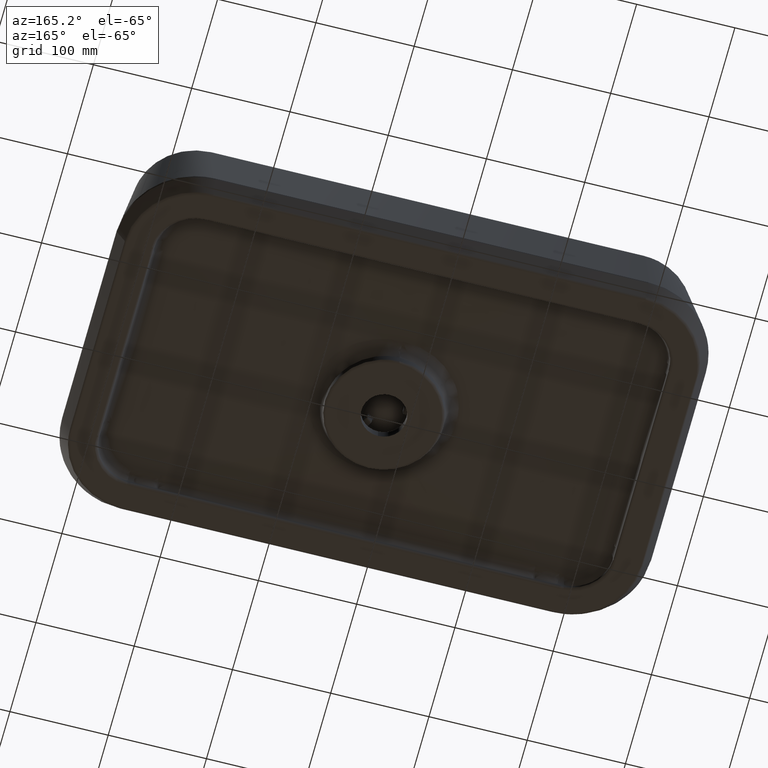
[diagram: clean part render]
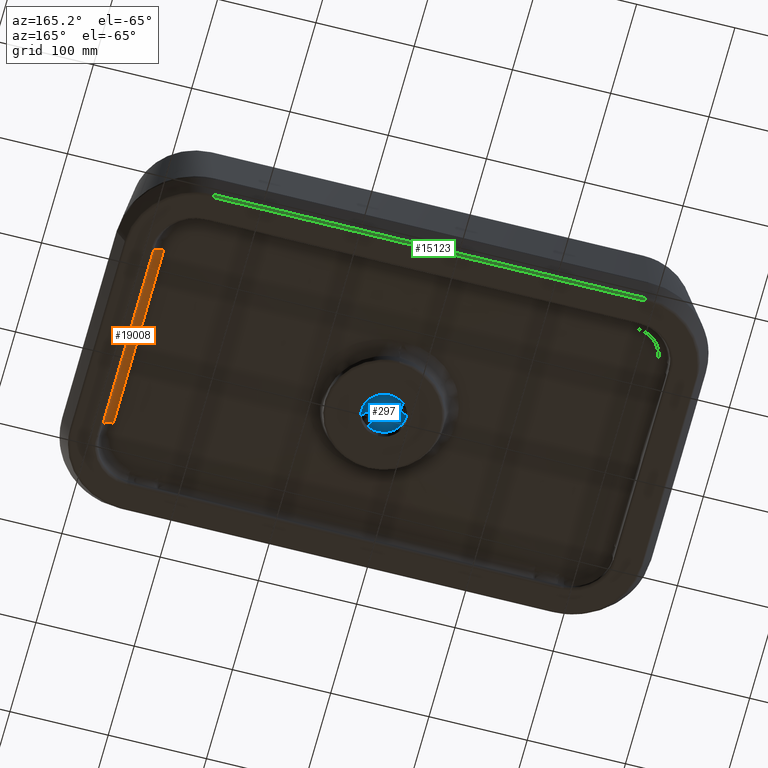
[diagram: same view with three faces highlighted in distinct colors, each labeled with its STEP entity id]
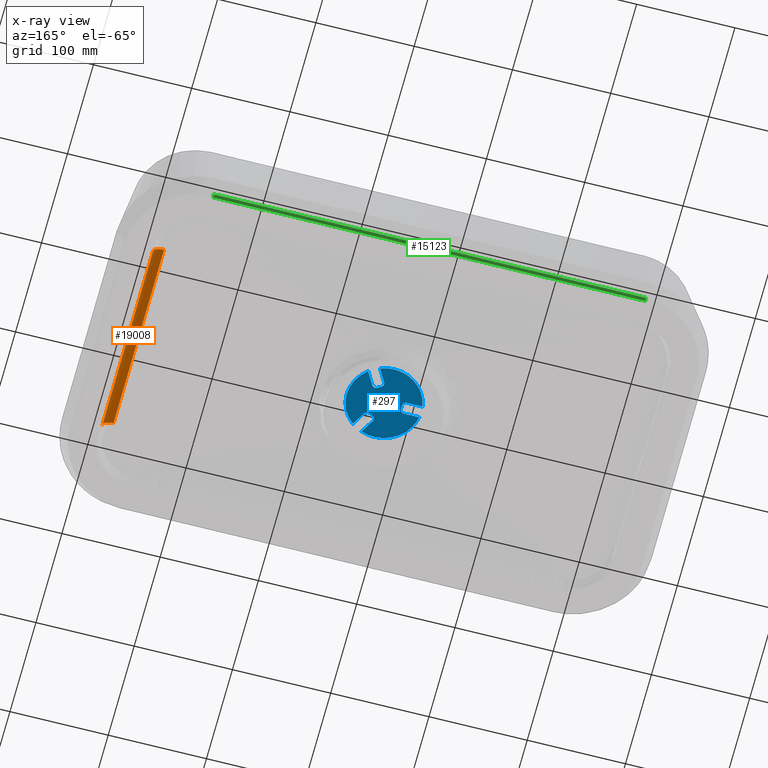
[diagram: x-ray of the same camera — body ghosted, the three highlighted faces saturated]
A machine part, auxiliary view with three faces highlighted in distinct colors.
The next image is the same camera in x-ray (body ghosted, the three faces saturated) — at least one of them is partly hidden behind the body in this view.
Their STEP definitions:

[orange] entity #19008 — the highlighted face is a freeform B-spline surface patch.
#88 = CARTESIAN_POINT ( 'NONE',  ( 575.3838114760809503, 200.6425218403274187, -5.569015328954023403 ) ) ;
#304 = CARTESIAN_POINT ( 'NONE',  ( 586.3879530879931963, 121.3180112384080900, -14.88368718921637424 ) ) ;
#772 = CARTESIAN_POINT ( 'NONE',  ( 575.3751134507359666, 287.8745370192449968, -5.269946946476159688 ) ) ;
#1235 =( BOUNDED_SURFACE ( )  B_SPLINE_SURFACE ( 3, 2, ( 
 ( #23891, #6565, #21557 ),
 ( #20063, #14010, #21922 ),
 ( #16119, #6925, #14498 ),
 ( #4955, #22045, #5075 ),
 ( #4712, #12640, #23652 ),
 ( #3231, #6685, #772 ),
 ( #15879, #1847, #24009 ),
 ( #24368, #11134, #7163 ),
 ( #5436, #20417, #14736 ),
 ( #3471, #12998, #5315 ),
 ( #20532, #22400, #7288 ),
 ( #10775, #3585, #22159 ),
 ( #22518, #22275, #16478 ),
 ( #9277, #16592, #9158 ),
 ( #20293, #18675, #7043 ),
 ( #18797, #12877, #1729 ),
 ( #5192, #16832, #3351 ),
 ( #7414, #7534, #14989 ),
 ( #16953, #13236, #5559 ),
 ( #3706, #1368, #18562 ) ),
 .UNSPECIFIED., .F., .F., .F. ) 
 B_SPLINE_SURFACE_WITH_KNOTS ( ( 4, 1, 1, 1, 1, 1, 1, 1, 1, 1, 1, 1, 1, 1, 1, 1, 1, 4 ),
 ( 3, 3 ),
 ( 648.9260752428019714, 649.5778598403690012, 651.3887988571730148, 655.0959892157829927, 660.3089444863250037, 666.6954660228369676, 678.2880995963549822, 699.2608530834510248, 703.9185377604940186, 714.2115784864249690, 729.1585867192250134, 750.9219618453670364, 786.0126512780329904, 800.9687645258419479, 821.9494370917509514, 832.5215264657409762, 840.6370622279670215, 843.2461138693879548 ),
 ( 0.0000000000000000000, 1.000000000000000000 ),
 .UNSPECIFIED. ) 
 GEOMETRIC_REPRESENTATION_ITEM ( )  RATIONAL_B_SPLINE_SURFACE ( (
 ( 1.000000000000000000, 0.7025825945884559554, 1.000000000000000000),
 ( 1.000000000000000000, 0.7025775182067219848, 1.000000000000000000),
 ( 1.000000000000000000, 0.7025632990401859956, 1.000000000000000000),
 ( 1.000000000000000000, 0.7025281789681060429, 1.000000000000000000),
 ( 1.000000000000000000, 0.7024685976512360375, 1.000000000000000000),
 ( 1.000000000000000000, 0.7023873726270479789, 1.000000000000000000),
 ( 0.9999999999999990008, 0.7022719563440720236, 0.9999999999999990008),
 ( 0.9999999999999990008, 0.7020987034707849572, 0.9999999999999990008),
 ( 1.000000000000000000, 0.7019703305220169609, 1.000000000000000000),
 ( 0.9999999999999980016, 0.7018770607977450338, 0.9999999999999980016),
 ( 1.000000000000000000, 0.7018144170268969528, 1.000000000000000000),
 ( 1.000000000000000000, 0.7017550787353690200, 1.000000000000000000),
 ( 0.9999999999999990008, 0.7017588231786350272, 0.9999999999999990008),
 ( 1.000000000000000000, 0.7019004681295559767, 1.000000000000000000),
 ( 0.9999999999999990008, 0.7021560943996919546, 0.9999999999999990008),
 ( 1.000000000000000000, 0.7023741625722069726, 1.000000000000000000),
 ( 1.000000000000000000, 0.7025954091914810018, 1.000000000000000000),
 ( 0.9999999999999990008, 0.7027245719301300486, 0.9999999999999990008),
 ( 1.000000000000000000, 0.7027916859617650003, 1.000000000000000000),
 ( 1.000000000000000000, 0.7028152632467840055, 1.000000000000000000) ) ) 
 REPRESENTATION_ITEM ( '' )  SURFACE ( )  );
#1257 = CARTESIAN_POINT ( 'NONE',  ( 575.3743931190051626, 280.1444073519290328, -5.298915807063760752 ) ) ;
#1313 = CARTESIAN_POINT ( 'NONE',  ( 586.3920308069294833, 105.3668769683890787, -14.93029737305474391 ) ) ;
#1318 = CARTESIAN_POINT ( 'NONE',  ( 575.4380408326730958, 105.3380877661850263, -5.851232755181523970 ) ) ;
#1368 = CARTESIAN_POINT ( 'NONE',  ( 585.5098659863009516, 105.3377349108640004, -4.847107335156190189 ) ) ;
#1474 = CARTESIAN_POINT ( 'NONE',  ( 586.3380561180148334, 297.0734223560887131, -14.31336597967584190 ) ) ;
#1577 = CARTESIAN_POINT ( 'NONE',  ( 575.3766941449600836, 299.6476653654199254, -5.225072091591061785 ) ) ;
#1729 = CARTESIAN_POINT ( 'NONE',  ( 575.4193602253150175, 130.1033799678270100, -5.779950795622699644 ) ) ;
#1796 = CARTESIAN_POINT ( 'NONE',  ( 586.3919014181101375, 105.8597565363179029, -14.92881834310329126 ) ) ;
#1832 = CARTESIAN_POINT ( 'NONE',  ( 586.3379448639765315, 297.4088712028362806, -14.31209444901288563 ) ) ;
#1847 = CARTESIAN_POINT ( 'NONE',  ( 585.4600631366530479, 280.1433276311880149, -4.277857383019320281 ) ) ;
#1914 = CARTESIAN_POINT ( 'NONE',  ( 586.3811557100293612, 147.6230472149217121, -14.80599371376735185 ) ) ;
#1953 = CARTESIAN_POINT ( 'NONE',  ( 586.3527185859537667, 250.8672247571465164, -14.48095635894214617 ) ) ;
#2038 = CARTESIAN_POINT ( 'NONE',  ( 586.3799785707839192, 152.1341205868896793, -14.79253892350274668 ) ) ;
#2295 = CARTESIAN_POINT ( 'NONE',  ( 586.3811792088416723, 147.5328863596021733, -14.80626230537733434 ) ) ;
#2335 = CARTESIAN_POINT ( 'NONE',  ( 586.3371803090503818, 299.6858878308577800, -14.30335219292925508 ) ) ;
#2774 = VERTEX_POINT ( 'NONE', #23792 ) ;
#2877 = CARTESIAN_POINT ( 'NONE',  ( 575.3766245026680508, 299.4305139886329812, -5.225912966457859632 ) ) ;
#3231 = CARTESIAN_POINT ( 'NONE',  ( 586.3410680172979710, 287.9119159192979964, -14.34779019453639926 ) ) ;
#3262 =( BOUNDED_CURVE ( )  B_SPLINE_CURVE ( 2, ( #14830, #18533, #1577 ),
 .UNSPECIFIED., .F., .T. ) 
 B_SPLINE_CURVE_WITH_KNOTS ( ( 3, 3 ),
 ( 0.0000000000000000000, 1.000000000000000000 ),
 .UNSPECIFIED. ) 
 CURVE ( )  GEOMETRIC_REPRESENTATION_ITEM ( )  RATIONAL_B_SPLINE_CURVE ( ( 1.000000000000000000, 0.7025825945884559554, 1.000000000000000000 ) ) 
 REPRESENTATION_ITEM ( '' )  );
#3351 = CARTESIAN_POINT ( 'NONE',  ( 575.4289471656020396, 116.8808991141000035, -5.818196280631530826 ) ) ;
#3456 = CARTESIAN_POINT ( 'NONE',  ( 586.3408260643709582, 288.6442369463678119, -14.34502474698108898 ) ) ;
#3471 = CARTESIAN_POINT ( 'NONE',  ( 586.3551421272510424, 242.8153484607080372, -14.50865729751649980 ) ) ;
#3568 = CARTESIAN_POINT ( 'NONE',  ( 586.3380676833595544, 297.0384851380351279, -14.31349816179819356 ) ) ;
#3585 = CARTESIAN_POINT ( 'NONE',  ( 585.4777840476909887, 217.1488910528879899, -4.480408609605260217 ) ) ;
#3690 = CARTESIAN_POINT ( 'NONE',  ( 586.3458818057385997, 272.9237991891496904, -14.40281118511824054 ) ) ;
#3706 = CARTESIAN_POINT ( 'NONE',  ( 586.3920314292170133, 105.3668769897929991, -14.93030448583520098 ) ) ;
#3717 = ORIENTED_EDGE ( 'NONE', *, *, #9291, .T. ) ;
#3783 = CARTESIAN_POINT ( 'NONE',  ( 586.3811747118394351, 147.5501408746944207, -14.80621090461129263 ) ) ;
#3903 = CARTESIAN_POINT ( 'NONE',  ( 586.3869529336660662, 125.2096298625202451, -14.87225536823753380 ) ) ;
#3940 = CARTESIAN_POINT ( 'NONE',  ( 586.3380642094141422, 297.0489807334741954, -14.31345845753429202 ) ) ;
#3993 = CARTESIAN_POINT ( 'NONE',  ( 575.3815461241703133, 207.8965996983439766, -5.546508574256115764 ) ) ;
#4070 = VERTEX_POINT ( 'NONE', #16507 ) ;
#4146 = CARTESIAN_POINT ( 'NONE',  ( 586.3812327960511084, 147.3272745675746762, -14.80687480754086849 ) ) ;
#4712 = CARTESIAN_POINT ( 'NONE',  ( 586.3393969591420500, 293.0141018105809962, -14.32869052270510046 ) ) ;
#4849 = B_SPLINE_CURVE_WITH_KNOTS ( 'NONE', 3,
 ( #16575, #20635, #20761, #18904, #1953, #9381, #9261, #18429, #14971, #5298, #22258, #9501, #22621, #22743, #17053, #5660, #3690, #7633, #15205, #18658, #16693, #12859, #18780, #3456, #10998, #5418, #5782, #20397, #7272, #16817, #14845, #22383, #13347, #20891, #3568, #3940, #1474, #11117, #7399, #1832, #11742, #8018, #2335 ),
 .UNSPECIFIED., .F., .F.,
 ( 4, 2, 1, 1, 1, 2, 2, 1, 1, 1, 1, 1, 2, 2, 1, 1, 1, 2, 2, 1, 1, 1, 1, 2, 2, 1, 1, 1, 1, 1, 1, 4 ),
 ( 0.0000000000000000000, 0.4717113887626532831, 0.4864523696614863613, 0.4938228601109029836, 0.4975081053356121275, 0.4993507279479658112, 0.5011933505603195504, 0.5306753123579790454, 0.5896392359532997007, 0.6486031595486203560, 0.6780851213462814053, 0.6928261022451120965, 0.6965113474698194640, 0.7001965926945266094, 0.7075670831439411224, 0.8254949303345554545, 0.8402359112333811497, 0.8476064016827949965, 0.8512916469075010317, 0.8549768921322069559, 0.8844588539298618990, 0.9139408157275166200, 0.9213113061769307999, 0.9249965514016379453, 0.9250541333582726899, 0.9251117153149075456, 0.9252268792281761467, 0.9254572070547135709, 0.9259178627077881973, 0.9268391740139385604, 0.9286817966262391755, 0.9434227775246412095 ),
 .UNSPECIFIED. ) ;
#4955 = CARTESIAN_POINT ( 'NONE',  ( 586.3382163589890297, 296.5911056936309933, -14.31519786869850108 ) ) ;
#5075 = CARTESIAN_POINT ( 'NONE',  ( 575.3761988698009873, 296.5531667365710291, -5.236960307339311171 ) ) ;
#5141 = CARTESIAN_POINT ( 'NONE',  ( 586.3909542160098454, 109.6145096367170311, -14.91799108511056815 ) ) ;
#5146 = CARTESIAN_POINT ( 'NONE',  ( 585.5098659863009516, 105.3377349108640004, -4.847107335156190189 ) ) ;
#5192 = CARTESIAN_POINT ( 'NONE',  ( 586.3890873476400429, 116.9102663016650183, -14.89665170197629962 ) ) ;
#5270 = CARTESIAN_POINT ( 'NONE',  ( 586.3920308069294833, 105.3668769683890787, -14.93029737305474391 ) ) ;
#5298 = CARTESIAN_POINT ( 'NONE',  ( 586.3522213305749347, 252.5060465474037130, -14.47527272030156631 ) ) ;
#5315 = CARTESIAN_POINT ( 'NONE',  ( 575.3749263883720459, 242.7811952480070090, -5.432251951734340167 ) ) ;
#5418 = CARTESIAN_POINT ( 'NONE',  ( 586.3406561633822776, 289.1647710222715091, -14.34308285130430072 ) ) ;
#5436 = CARTESIAN_POINT ( 'NONE',  ( 586.3515460628469782, 254.7897702241029947, -14.46755456467479917 ) ) ;
#5559 = CARTESIAN_POINT ( 'NONE',  ( 575.4371628752160177, 106.2072215414819993, -5.848802413413360490 ) ) ;
#5652 = CARTESIAN_POINT ( 'NONE',  ( 575.4092653633001646, 145.6060757719290280, -5.734850016921760663 ) ) ;
#5660 = CARTESIAN_POINT ( 'NONE',  ( 586.3460882721835787, 272.2721793283790817, -14.40517111200066225 ) ) ;
#5782 = CARTESIAN_POINT ( 'NONE',  ( 586.3405726962306517, 289.4203409882170490, -14.34212885871622234 ) ) ;
#5813 = EDGE_CURVE ( 'NONE', #13557, #2774, #14348, .T. ) ;
#5841 = VERTEX_POINT ( 'NONE', #21253 ) ;
#5984 = CARTESIAN_POINT ( 'NONE',  ( 586.3877238484284362, 122.2102081777775311, -14.88106696186523514 ) ) ;
#5989 = VERTEX_POINT ( 'NONE', #19361 ) ;
#6151 = ORIENTED_EDGE ( 'NONE', *, *, #6498, .T. ) ;
#6218 = CARTESIAN_POINT ( 'NONE',  ( 575.3786873666443853, 218.6411418395605608, -5.512710776478321861 ) ) ;
#6498 = EDGE_CURVE ( 'NONE', #2774, #5989, #6655, .T. ) ;
#6565 = CARTESIAN_POINT ( 'NONE',  ( 585.4544500041860147, 299.6471702120330178, -4.213698690755900422 ) ) ;
#6574 = CARTESIAN_POINT ( 'NONE',  ( 575.3761988698009873, 296.5531667365710291, -5.236960307339311171 ) ) ;
#6655 = B_SPLINE_CURVE_WITH_KNOTS ( 'NONE', 3,
 ( #11547, #3993, #6218, #11923, #19458, #10065, #17613, #1257, #10188, #14144, #6574, #12289, #2877, #8447 ),
 .UNSPECIFIED., .F., .F.,
 ( 4, 1, 1, 1, 1, 1, 1, 1, 1, 1, 1, 4 ),
 ( 0.0000000000000000000, 0.1772825129897547258, 0.3305516158175319519, 0.4360981635187152761, 0.4838588351251249531, 0.6989169297437812789, 0.8177897181674367300, 0.8832781698258389547, 0.9367326782433826882, 0.9747468233770605339, 0.9933164925749593532, 1.000000000000000000 ),
 .UNSPECIFIED. ) ;
#6685 = CARTESIAN_POINT ( 'NONE',  ( 585.4578435085070396, 287.8737839272300789, -4.252487846686269890 ) ) ;
#6809 = FACE_OUTER_BOUND ( 'NONE', #13723, .T. ) ;
#6925 = CARTESIAN_POINT ( 'NONE',  ( 585.4547468633779772, 298.6091553953519906, -4.217094582537391112 ) ) ;
#6993 = CARTESIAN_POINT ( 'NONE',  ( 586.3917110028851312, 106.5990771982498302, -14.92664173346446788 ) ) ;
#7043 = CARTESIAN_POINT ( 'NONE',  ( 575.4092653633001646, 145.6060757719290280, -5.734850016921759774 ) ) ;
#7111 = CARTESIAN_POINT ( 'NONE',  ( 586.3913052855818933, 108.2194972903789960, -14.92200406609338437 ) ) ;
#7163 = CARTESIAN_POINT ( 'NONE',  ( 575.3736910336821211, 267.1614137537420106, -5.346726592512240472 ) ) ;
#7261 = CARTESIAN_POINT ( 'NONE',  ( 575.3959077380840199, 169.2811540036809959, -5.664533435038520359 ) ) ;
#7272 = CARTESIAN_POINT ( 'NONE',  ( 586.3394819282607386, 292.7524575081376952, -14.32966192980422271 ) ) ;
#7288 = CARTESIAN_POINT ( 'NONE',  ( 575.3761248438989924, 232.8160786012439871, -5.466128672333930183 ) ) ;
#7399 = CARTESIAN_POINT ( 'NONE',  ( 586.3380079750379537, 297.2187252516349076, -14.31281574439618787 ) ) ;
#7414 = CARTESIAN_POINT ( 'NONE',  ( 586.3908971367480945, 109.8114043586220134, -14.91733862158610258 ) ) ;
#7479 = CARTESIAN_POINT ( 'NONE',  ( 586.3913861510084189, 107.8928921309536690, -14.92292841908191647 ) ) ;
#7534 = CARTESIAN_POINT ( 'NONE',  ( 585.5085067909848249, 109.7820044553079981, -4.831570816923060008 ) ) ;
#7601 = CARTESIAN_POINT ( 'NONE',  ( 586.3811768101908228, 147.5420897498913746, -14.80623488877604110 ) ) ;
#7633 = CARTESIAN_POINT ( 'NONE',  ( 586.3457991697611078, 273.1845045255106470, -14.40186665000861765 ) ) ;
#7725 = CARTESIAN_POINT ( 'NONE',  ( 586.3804026487030114, 150.5106166352468904, -14.79738619498901642 ) ) ;
#7851 = CARTESIAN_POINT ( 'NONE',  ( 586.3879471977027151, 121.3409376369877748, -14.88361986266264836 ) ) ;
#8018 = CARTESIAN_POINT ( 'NONE',  ( 586.3373547256312577, 299.1638338570377869, -14.30534654605711253 ) ) ;
#8431 = B_SPLINE_CURVE_WITH_KNOTS ( 'NONE', 3,
 ( #1313, #1796, #6993, #9347, #7479, #15053, #8991, #9109, #18512, #8867, #7111, #16541, #12589, #16421, #5141, #12705, #20246, #18869, #13184, #20726, #11447, #304, #11700, #7851, #20971, #22708, #5984, #3903, #19238, #21094, #15419, #9973, #4146, #2295, #7601, #17017, #3783, #11325, #1914, #17389, #19109, #17265, #7725, #2038, #22953, #15298, #13555 ),
 .UNSPECIFIED., .F., .F.,
 ( 4, 1, 1, 1, 1, 1, 1, 2, 2, 1, 1, 1, 1, 1, 1, 1, 1, 2, 2, 1, 1, 1, 1, 1, 2, 1, 1, 1, 2, 2, 1, 1, 1, 1, 1, 2, 4 ),
 ( 0.09780121792953981597, 0.1118980738993733820, 0.1189465018842901650, 0.1224707158767485565, 0.1242328228729777523, 0.1246733496220350512, 0.1248936129965634995, 0.1249486788401956150, 0.1250037446838277166, 0.1251138763710919477, 0.1259949298692096820, 0.1541886418089268851, 0.2105760656883612914, 0.2387697776280784945, 0.2458182056130079340, 0.2493424196054726538, 0.2497829463545307993, 0.2498930780417953912, 0.2500032097290599831, 0.2502234731035891668, 0.2511045266017055688, 0.2528666335979383728, 0.2669634895677993613, 0.3233509134472435931, 0.4361257612061311684, 0.4925131850855754001, 0.4995616130705058944, 0.4997818764450345230, 0.4998920081322988374, 0.5000021398195630962, 0.5004426665686211306, 0.5013237200667369775, 0.5030858270629680051, 0.5066100410554293942, 0.5207068970252740625, 0.5489006089649633990, 1.000000000000000000 ),
 .UNSPECIFIED. ) ;
#8447 = CARTESIAN_POINT ( 'NONE',  ( 575.3766941449600836, 299.6476653654199254, -5.225072091591061785 ) ) ;
#8867 = CARTESIAN_POINT ( 'NONE',  ( 586.3913060638137722, 108.2163463617891210, -14.92201296187006854 ) ) ;
#8991 = CARTESIAN_POINT ( 'NONE',  ( 586.3913155774387178, 108.1778398967294805, -14.92212170974526941 ) ) ;
#9109 = CARTESIAN_POINT ( 'NONE',  ( 586.3913093929133993, 108.2028690987256425, -14.92205101597715355 ) ) ;
#9158 = CARTESIAN_POINT ( 'NONE',  ( 575.3959077380840199, 169.2811540036809959, -5.664533435038520359 ) ) ;
#9261 = CARTESIAN_POINT ( 'NONE',  ( 586.3523325267034352, 252.1400647409367082, -14.47654369558255993 ) ) ;
#9277 = CARTESIAN_POINT ( 'NONE',  ( 586.3754711040710390, 169.3115828608320044, -14.74101831447759992 ) ) ;
#9291 = EDGE_CURVE ( 'NONE', #5841, #13557, #20009, .T. ) ;
#9347 = CARTESIAN_POINT ( 'NONE',  ( 586.3914936373651017, 107.4616201325682709, -14.92415707125842061 ) ) ;
#9381 = CARTESIAN_POINT ( 'NONE',  ( 586.3524612054170575, 251.7161916271439281, -14.47801449640491711 ) ) ;
#9492 = CARTESIAN_POINT ( 'NONE',  ( 575.4343696100771695, 109.7820917575080131, -5.838521542163960021 ) ) ;
#9501 = CARTESIAN_POINT ( 'NONE',  ( 586.3509588027934569, 256.6492655324855150, -14.46084195088397273 ) ) ;
#9973 = CARTESIAN_POINT ( 'NONE',  ( 586.3816983748669145, 145.5403160772861781, -14.81219637292567803 ) ) ;
#10065 = CARTESIAN_POINT ( 'NONE',  ( 575.3739359594250118, 254.7547342212300236, -5.390885809319360789 ) ) ;
#10188 = CARTESIAN_POINT ( 'NONE',  ( 575.3751134507359666, 287.8745370192449968, -5.269946946476159688 ) ) ;
#10775 = CARTESIAN_POINT ( 'NONE',  ( 586.3625801989010142, 217.1817712314650066, -14.59367490094319919 ) ) ;
#10998 = CARTESIAN_POINT ( 'NONE',  ( 586.3406986251752642, 289.0347126053846409, -14.34356817116383631 ) ) ;
#11117 = CARTESIAN_POINT ( 'NONE',  ( 586.3380399931097600, 297.1221132009650887, -14.31318168565478821 ) ) ;
#11134 = CARTESIAN_POINT ( 'NONE',  ( 585.4637732560040604, 267.1592707087689860, -4.320264325198470701 ) ) ;
#11325 = CARTESIAN_POINT ( 'NONE',  ( 586.3811691227717802, 147.5715852787329254, -14.80614702152208473 ) ) ;
#11447 = CARTESIAN_POINT ( 'NONE',  ( 586.3879566463796209, 121.3041611143890748, -14.88372786189880692 ) ) ;
#11547 = CARTESIAN_POINT ( 'NONE',  ( 575.3833467861413737, 202.1339592935844678, -5.564398326460293198 ) ) ;
#11700 = CARTESIAN_POINT ( 'NONE',  ( 586.3879507697693043, 121.3270343201071313, -14.88366069170726291 ) ) ;
#11742 = CARTESIAN_POINT ( 'NONE',  ( 586.3376123820639805, 298.4076550499063387, -14.30829379152907599 ) ) ;
#11923 = CARTESIAN_POINT ( 'NONE',  ( 575.3761248438989924, 232.8160786012439871, -5.466128672333930183 ) ) ;
#12289 = CARTESIAN_POINT ( 'NONE',  ( 575.3764992800940945, 298.6096642061850162, -5.229069338182600113 ) ) ;
#12589 = CARTESIAN_POINT ( 'NONE',  ( 586.3913032794007449, 108.2276189872474532, -14.92198113393900449 ) ) ;
#12640 = CARTESIAN_POINT ( 'NONE',  ( 585.4563741109639068, 292.9757360363669818, -4.235693187162730133 ) ) ;
#12705 = CARTESIAN_POINT ( 'NONE',  ( 586.3900117796366658, 113.2993129687034894, -14.90721847145232104 ) ) ;
#12859 = CARTESIAN_POINT ( 'NONE',  ( 586.3426871345294558, 282.9277533487787650, -14.36629610214619746 ) ) ;
#12877 = CARTESIAN_POINT ( 'NONE',  ( 585.5024265738740041, 130.1049579342590050, -4.762072932761330257 ) ) ;
#12998 = CARTESIAN_POINT ( 'NONE',  ( 585.4706495631951384, 242.7804797221230046, -4.398861021373810409 ) ) ;
#13184 = CARTESIAN_POINT ( 'NONE',  ( 586.3880312134737096, 121.0139244577412114, -14.88458017070979089 ) ) ;
#13210 = CARTESIAN_POINT ( 'NONE',  ( 575.4193602253150175, 130.1033799678270100, -5.779950795622699644 ) ) ;
#13232 = CARTESIAN_POINT ( 'NONE',  ( 586.3672630817657137, 199.9999997654051640, -14.64720048120042506 ) ) ;
#13236 = CARTESIAN_POINT ( 'NONE',  ( 585.5095891376020063, 106.2068814378850021, -4.843942728989589774 ) ) ;
#13347 = CARTESIAN_POINT ( 'NONE',  ( 586.3380715604505440, 297.0267704840808278, -14.31354247367976207 ) ) ;
#13555 = CARTESIAN_POINT ( 'NONE',  ( 586.3672630817657137, 199.9999997654051640, -14.64720048120042506 ) ) ;
#13557 = VERTEX_POINT ( 'NONE', #14690 ) ;
#13723 = EDGE_LOOP ( 'NONE', ( #16189, #24317, #22684, #3717, #20287, #6151 ) ) ;
#14010 = CARTESIAN_POINT ( 'NONE',  ( 585.4545097276679826, 299.4300179551450469, -4.214381350125350423 ) ) ;
#14144 = CARTESIAN_POINT ( 'NONE',  ( 575.3757134013319501, 292.9763915192029913, -5.250619655399609620 ) ) ;
#14348 = B_SPLINE_CURVE_WITH_KNOTS ( 'NONE', 3,
 ( #17162, #22611, #9492, #20882, #13210, #5652, #7261, #17044, #88, #20066 ),
 .UNSPECIFIED., .F., .F.,
 ( 4, 1, 1, 1, 1, 1, 1, 4 ),
 ( 0.0000000000000000000, 0.02695337508321943298, 0.1107926812617010814, 0.2200099484811729178, 0.4367553467666497324, 0.5912627255227702605, 0.9537747199930309838, 1.000000000000000000 ),
 .UNSPECIFIED. ) ;
#14498 = CARTESIAN_POINT ( 'NONE',  ( 575.3764992800940945, 298.6096642061850162, -5.229069338182600113 ) ) ;
#14690 = CARTESIAN_POINT ( 'NONE',  ( 575.4380408326730958, 105.3380877661850263, -5.851232755181523970 ) ) ;
#14736 = CARTESIAN_POINT ( 'NONE',  ( 575.3739359594250118, 254.7547342212300236, -5.390885809319360789 ) ) ;
#14830 = CARTESIAN_POINT ( 'NONE',  ( 586.3371803090503818, 299.6858878308577800, -14.30335219292925508 ) ) ;
#14845 = CARTESIAN_POINT ( 'NONE',  ( 586.3382441626088166, 296.5050839847965563, -14.31551517230128745 ) ) ;
#14971 = CARTESIAN_POINT ( 'NONE',  ( 586.3522406180112512, 252.4425842213153146, -14.47549317636628530 ) ) ;
#14989 = CARTESIAN_POINT ( 'NONE',  ( 575.4343696100771695, 109.7820917575080131, -5.838521542163960021 ) ) ;
#15053 = CARTESIAN_POINT ( 'NONE',  ( 586.3913365243657836, 108.0931256810174688, -14.92236114889355925 ) ) ;
#15205 = CARTESIAN_POINT ( 'NONE',  ( 586.3457570528030374, 273.3173266458522335, -14.40138525032255501 ) ) ;
#15226 = EDGE_CURVE ( 'NONE', #4070, #5989, #3262, .T. ) ;
#15298 = CARTESIAN_POINT ( 'NONE',  ( 586.3710512595069986, 186.0227105714927518, -14.69049951980769286 ) ) ;
#15419 = CARTESIAN_POINT ( 'NONE',  ( 586.3821909488634674, 143.6449726603334511, -14.81782646063790487 ) ) ;
#15879 = CARTESIAN_POINT ( 'NONE',  ( 586.3435741960081486, 280.1812655908280476, -14.37643500373350136 ) ) ;
#16119 = CARTESIAN_POINT ( 'NONE',  ( 586.3375346481269617, 298.6477259160340054, -14.30740506090980091 ) ) ;
#16189 = ORIENTED_EDGE ( 'NONE', *, *, #15226, .F. ) ;
#16421 = CARTESIAN_POINT ( 'NONE',  ( 586.3912509501051318, 108.4391690923903013, -14.92138297095848287 ) ) ;
#16478 = CARTESIAN_POINT ( 'NONE',  ( 575.3856078153281715, 193.2176287590670256, -5.592424967397710667 ) ) ;
#16507 = CARTESIAN_POINT ( 'NONE',  ( 586.3371803090503818, 299.6858878308577800, -14.30335219292925508 ) ) ;
#16541 = CARTESIAN_POINT ( 'NONE',  ( 586.3913049998850511, 108.2206540442573726, -14.92200080036565346 ) ) ;
#16575 = CARTESIAN_POINT ( 'NONE',  ( 586.3672630817657137, 199.9999997654051640, -14.64720048120042506 ) ) ;
#16592 = CARTESIAN_POINT ( 'NONE',  ( 585.4910347050140444, 169.2838052269859759, -4.631864008906740438 ) ) ;
#16693 = CARTESIAN_POINT ( 'NONE',  ( 586.3442588376419735, 278.0372373214968320, -14.38426056438029477 ) ) ;
#16817 = CARTESIAN_POINT ( 'NONE',  ( 586.3387158328160922, 295.0779697669042321, -14.32090598631627287 ) ) ;
#16832 = CARTESIAN_POINT ( 'NONE',  ( 585.5063764420000325, 116.8812533497279986, -4.807219879494280868 ) ) ;
#16953 = CARTESIAN_POINT ( 'NONE',  ( 586.3918129285510759, 106.2365572666009967, -14.92780680092150192 ) ) ;
#17017 = CARTESIAN_POINT ( 'NONE',  ( 586.3811752112624163, 147.5482246527818404, -14.80621661301266023 ) ) ;
#17044 = CARTESIAN_POINT ( 'NONE',  ( 575.3880875974432456, 187.4547465121817424, -5.609785611028988761 ) ) ;
#17053 = CARTESIAN_POINT ( 'NONE',  ( 586.3466234794938146, 270.5798328439374814, -14.41128858030331372 ) ) ;
#17162 = CARTESIAN_POINT ( 'NONE',  ( 575.4380408326730958, 105.3380877661850263, -5.851232755181523970 ) ) ;
#17265 = CARTESIAN_POINT ( 'NONE',  ( 586.3808654650670178, 148.7364016660408197, -14.80267620814260709 ) ) ;
#17389 = CARTESIAN_POINT ( 'NONE',  ( 586.3811244207771551, 147.7430926314790725, -14.80563607728854514 ) ) ;
#17613 = CARTESIAN_POINT ( 'NONE',  ( 575.3736910336821211, 267.1614137537420106, -5.346726592512240472 ) ) ;
#18429 = CARTESIAN_POINT ( 'NONE',  ( 586.3522773811583875, 252.3215938663832674, -14.47591338032576758 ) ) ;
#18512 = CARTESIAN_POINT ( 'NONE',  ( 586.3913070149457099, 108.2124957151821434, -14.92202383401772003 ) ) ;
#18533 = CARTESIAN_POINT ( 'NONE',  ( 585.4544500041859010, 299.6471702120330178, -4.213698690755900422 ) ) ;
#18562 = CARTESIAN_POINT ( 'NONE',  ( 575.4380408326729821, 105.3380877661849979, -5.851232755181531076 ) ) ;
#18658 = CARTESIAN_POINT ( 'NONE',  ( 586.3456357160318930, 273.6998393175564956, -14.39999836323038096 ) ) ;
#18675 = CARTESIAN_POINT ( 'NONE',  ( 585.4978853880929819, 145.6075105836719956, -4.710167806234530019 ) ) ;
#18780 = CARTESIAN_POINT ( 'NONE',  ( 586.3410806375115953, 287.8636841098644368, -14.34793441417936855 ) ) ;
#18797 = CARTESIAN_POINT ( 'NONE',  ( 586.3856867911391646, 130.1329747926899927, -14.85778342133579955 ) ) ;
#18869 = CARTESIAN_POINT ( 'NONE',  ( 586.3882061905075034, 120.3328146453782068, -14.88658017670437594 ) ) ;
#18904 = CARTESIAN_POINT ( 'NONE',  ( 586.3529392374919098, 250.1374462535534917, -14.48347840264695563 ) ) ;
#19008 = ADVANCED_FACE ( 'NONE', ( #6809 ), #1235, .T. ) ;
#19109 = CARTESIAN_POINT ( 'NONE',  ( 586.3810618708560014, 147.9830537262082260, -14.80492113079327687 ) ) ;
#19238 = CARTESIAN_POINT ( 'NONE',  ( 586.3850892346190449, 132.4502077880758861, -14.85095343326033301 ) ) ;
#19361 = CARTESIAN_POINT ( 'NONE',  ( 575.3766941449600836, 299.6476653654199254, -5.225072091591061785 ) ) ;
#19458 = CARTESIAN_POINT ( 'NONE',  ( 575.3749263883720459, 242.7811952480070090, -5.432251951734340167 ) ) ;
#20009 =( BOUNDED_CURVE ( )  B_SPLINE_CURVE ( 2, ( #5270, #5146, #1318 ),
 .UNSPECIFIED., .F., .F. ) 
 B_SPLINE_CURVE_WITH_KNOTS ( ( 3, 3 ),
 ( 0.0000000000000000000, 1.000000000000000000 ),
 .UNSPECIFIED. ) 
 CURVE ( )  GEOMETRIC_REPRESENTATION_ITEM ( )  RATIONAL_B_SPLINE_CURVE ( ( 1.000000000000000000, 0.7028152632467840055, 1.000000000000000000 ) ) 
 REPRESENTATION_ITEM ( '' )  );
#20063 = CARTESIAN_POINT ( 'NONE',  ( 586.3372622170189743, 299.4686279437809731, -14.30428840527200052 ) ) ;
#20066 = CARTESIAN_POINT ( 'NONE',  ( 575.3833467861413737, 202.1339592935844678, -5.564398326460293198 ) ) ;
#20246 = CARTESIAN_POINT ( 'NONE',  ( 586.3887984368692514, 118.0270000718785468, -14.89334963550032498 ) ) ;
#20287 = ORIENTED_EDGE ( 'NONE', *, *, #5813, .T. ) ;
#20293 = CARTESIAN_POINT ( 'NONE',  ( 586.3816868496561483, 145.6358651490530178, -14.81206474121560035 ) ) ;
#20352 = EDGE_CURVE ( 'NONE', #5841, #21859, #8431, .T. ) ;
#20397 = CARTESIAN_POINT ( 'NONE',  ( 586.3401968077116635, 290.5708938839234747, -14.33783262264304881 ) ) ;
#20417 = CARTESIAN_POINT ( 'NONE',  ( 585.4672855574250434, 254.7535099455709826, -4.360410735992659603 ) ) ;
#20532 = CARTESIAN_POINT ( 'NONE',  ( 586.3580904935289482, 232.8494945626270294, -14.54235727091280062 ) ) ;
#20635 = CARTESIAN_POINT ( 'NONE',  ( 586.3625197034909888, 217.5017142553215308, -14.59298342924063263 ) ) ;
#20726 = CARTESIAN_POINT ( 'NONE',  ( 586.3879655388436731, 121.2695493714732180, -14.88382950357142320 ) ) ;
#20761 = CARTESIAN_POINT ( 'NONE',  ( 586.3577941538460436, 234.0516249412796981, -14.53896992373674735 ) ) ;
#20882 = CARTESIAN_POINT ( 'NONE',  ( 575.4289471656020396, 116.8808991141000035, -5.818196280631530826 ) ) ;
#20891 = CARTESIAN_POINT ( 'NONE',  ( 586.3380700007012365, 297.0314834934498549, -14.31352464706211691 ) ) ;
#20971 = CARTESIAN_POINT ( 'NONE',  ( 586.3879352925373496, 121.3872751210688108, -14.88348378555548912 ) ) ;
#21094 = CARTESIAN_POINT ( 'NONE',  ( 586.3835722852551271, 138.3191572853255025, -14.83361498741014017 ) ) ;
#21253 = CARTESIAN_POINT ( 'NONE',  ( 586.3920308069294833, 105.3668769683890787, -14.93029737305474391 ) ) ;
#21557 = CARTESIAN_POINT ( 'NONE',  ( 575.3766941449599699, 299.6476653654199822, -5.225072091591090206 ) ) ;
#21859 = VERTEX_POINT ( 'NONE', #13232 ) ;
#21922 = CARTESIAN_POINT ( 'NONE',  ( 575.3766245026680508, 299.4305139886329812, -5.225912966457859632 ) ) ;
#22045 = CARTESIAN_POINT ( 'NONE',  ( 585.4553414144819499, 296.5526076674079832, -4.223891021921049926 ) ) ;
#22159 = CARTESIAN_POINT ( 'NONE',  ( 575.3789569747119685, 217.1497688110989941, -5.517611771445560365 ) ) ;
#22258 = CARTESIAN_POINT ( 'NONE',  ( 586.3518923699868992, 253.5882200527295254, -14.47151268876275765 ) ) ;
#22275 = CARTESIAN_POINT ( 'NONE',  ( 585.4843392611519448, 193.2179409338299934, -4.555335096312290943 ) ) ;
#22383 = CARTESIAN_POINT ( 'NONE',  ( 586.3381152388418514, 296.8947852594732240, -14.31404168087034456 ) ) ;
#22400 = CARTESIAN_POINT ( 'NONE',  ( 585.4734421693219701, 232.8151505793680087, -4.430780652187051416 ) ) ;
#22518 = CARTESIAN_POINT ( 'NONE',  ( 586.3691268239020928, 193.2481980918470583, -14.66850321967530135 ) ) ;
#22611 = CARTESIAN_POINT ( 'NONE',  ( 575.4371628752160177, 106.2072215414819993, -5.848802413413360490 ) ) ;
#22621 = CARTESIAN_POINT ( 'NONE',  ( 586.3493791674331987, 261.7785008488314702, -14.44278649655388946 ) ) ;
#22684 = ORIENTED_EDGE ( 'NONE', *, *, #20352, .F. ) ;
#22708 = CARTESIAN_POINT ( 'NONE',  ( 586.3879043615171440, 121.5076628078840031, -14.88313024128406781 ) ) ;
#22743 = CARTESIAN_POINT ( 'NONE',  ( 586.3477679354824659, 266.9444184774516202, -14.42436985395882765 ) ) ;
#22925 = EDGE_CURVE ( 'NONE', #21859, #4070, #4849, .T. ) ;
#22953 = CARTESIAN_POINT ( 'NONE',  ( 586.3751960127492566, 170.4261324738099290, -14.73787380167694749 ) ) ;
#23652 = CARTESIAN_POINT ( 'NONE',  ( 575.3757134013319501, 292.9763915192029913, -5.250619655399609620 ) ) ;
#23792 = CARTESIAN_POINT ( 'NONE',  ( 575.3833467861413737, 202.1339592935844678, -5.564398326460293198 ) ) ;
#23891 = CARTESIAN_POINT ( 'NONE',  ( 586.3371898603460295, 299.6858882741129833, -14.30346136473840168 ) ) ;
#24009 = CARTESIAN_POINT ( 'NONE',  ( 575.3743931190051626, 280.1444073519290328, -5.298915807063760752 ) ) ;
#24317 = ORIENTED_EDGE ( 'NONE', *, *, #22925, .F. ) ;
#24368 = CARTESIAN_POINT ( 'NONE',  ( 586.3477144114270914, 267.1973830449670118, -14.42375797081120403 ) ) ;

[blue] entity #297 — the highlighted planar face has unit normal (0, 0, -1).
#4 = CARTESIAN_POINT ( 'NONE',  ( 307.2996101186209899, 202.0000000000000000, -18.00000000000000355 ) ) ;
#297 = ADVANCED_FACE ( 'NONE', ( #15243 ), #22655, .T. ) ;
#326 = CARTESIAN_POINT ( 'NONE',  ( 332.1181441331210067, 183.6710127058360342, -18.00000000000009237 ) ) ;
#508 = CARTESIAN_POINT ( 'NONE',  ( 340.4324224234847520, 214.9379223778407209, -18.00000000000000711 ) ) ;
#669 = CARTESIAN_POINT ( 'NONE',  ( 307.2996101186209899, 198.0000000000000000, -17.99999999999999289 ) ) ;
#679 = DIRECTION ( 'NONE',  ( 0.0000000000000000000, 1.000000000000000000, 0.0000000000000000000 ) ) ;
#840 = ORIENTED_EDGE ( 'NONE', *, *, #10244, .T. ) ;
#983 = VERTEX_POINT ( 'NONE', #6619 ) ;
#1045 = CARTESIAN_POINT ( 'NONE',  ( 310.8653922161506671, 235.3848681165514449, -18.00000000000000000 ) ) ;
#1197 = ORIENTED_EDGE ( 'NONE', *, *, #20188, .T. ) ;
#1399 = CARTESIAN_POINT ( 'NONE',  ( 303.6717810467428080, 168.4352714778907227, -18.00000000000000355 ) ) ;
#1431 = CIRCLE ( 'NONE', #15273, 38.00000000004244782 ) ;
#1530 = CARTESIAN_POINT ( 'NONE',  ( 297.2810029789849295, 226.1444857284795660, -18.00000000000000711 ) ) ;
#1535 = ORIENTED_EDGE ( 'NONE', *, *, #2074, .T. ) ;
#1671 = B_SPLINE_CURVE_WITH_KNOTS ( 'NONE', 3,
 ( #7321, #14895, #16627, #24162, #22078, #13029, #7445, #7198, #1399, #14769, #20210, #15020, #20564, #22553, #16387, #13150, #3146, #10691 ),
 .UNSPECIFIED., .F., .F.,
 ( 4, 2, 2, 2, 2, 2, 2, 2, 4 ),
 ( 0.0000000000000000000, 0.1250000000000000000, 0.2500000000000000000, 0.3750000000000000000, 0.5000000000000000000, 0.6250000000000000000, 0.7500000000000000000, 0.8750000000000000000, 1.000000000000000000 ),
 .UNSPECIFIED. ) ;
#1713 = EDGE_LOOP ( 'NONE', ( #8842, #22112, #5517, #3244, #1535, #8143, #6394, #10095, #8575, #21159, #8178, #1197, #840, #10718, #6571, #6277, #7105, #13988, #17689 ) ) ;
#1854 = CARTESIAN_POINT ( 'NONE',  ( 330.6540425179829867, 178.2069110906990090, -18.00000000000000355 ) ) ;
#1880 = CARTESIAN_POINT ( 'NONE',  ( 339.1224752235674487, 185.9354044246644264, -18.00000000000000355 ) ) ;
#2004 = CARTESIAN_POINT ( 'NONE',  ( 341.0463473633960234, 184.2069110906990090, -17.99999999999999289 ) ) ;
#2074 = EDGE_CURVE ( 'NONE', #5956, #23321, #17660, .T. ) ;
#2109 = VERTEX_POINT ( 'NONE', #23307 ) ;
#2215 = CARTESIAN_POINT ( 'NONE',  ( 330.3895184573481174, 218.2528297104592241, -18.00000000000000711 ) ) ;
#2345 = CARTESIAN_POINT ( 'NONE',  ( 331.2629776016437972, 216.9429122340080767, -18.00000000000000711 ) ) ;
#2527 = CARTESIAN_POINT ( 'NONE',  ( 305.3135104250984000, 194.5044422644284055, -18.00000000000000000 ) ) ;
#2674 = VECTOR ( 'NONE', #19639, 999.9999999999998863 ) ;
#2719 = VERTEX_POINT ( 'NONE', #16259 ) ;
#2873 = EDGE_CURVE ( 'NONE', #9196, #17886, #5337, .T. ) ;
#2895 = CARTESIAN_POINT ( 'NONE',  ( 335.5822457482589130, 185.6710127058360627, -18.00000000000009237 ) ) ;
#2946 = CARTESIAN_POINT ( 'NONE',  ( 348.9578241182940133, 170.5038242367600390, -17.99999999996380495 ) ) ;
#3009 = CARTESIAN_POINT ( 'NONE',  ( 303.2996101186209899, 194.0000000000000000, -18.00000000000000711 ) ) ;
#3146 = CARTESIAN_POINT ( 'NONE',  ( 335.9904135723297145, 163.5197841011255093, -18.00000000000000711 ) ) ;
#3244 = ORIENTED_EDGE ( 'NONE', *, *, #3460, .T. ) ;
#3460 = EDGE_CURVE ( 'NONE', #10508, #5956, #21492, .T. ) ;
#3496 = CARTESIAN_POINT ( 'NONE',  ( 375.0000000000000000, 193.9999976565740383, -18.00000000000000355 ) ) ;
#3763 = EDGE_CURVE ( 'NONE', #14197, #14660, #16196, .T. ) ;
#3764 = VECTOR ( 'NONE', #679, 1000.000000000000000 ) ;
#3908 = VERTEX_POINT ( 'NONE', #22302 ) ;
#4064 = EDGE_CURVE ( 'NONE', #11874, #14197, #8955, .T. ) ;
#4071 = CARTESIAN_POINT ( 'NONE',  ( 330.1190594504842579, 219.2627200952876763, -18.00000000000000355 ) ) ;
#4531 = CARTESIAN_POINT ( 'NONE',  ( 330.1189299772193522, 180.7373203337514553, -18.00000000000000711 ) ) ;
#4660 = CARTESIAN_POINT ( 'NONE',  ( 303.2996101186209899, 206.0000000000000284, -18.00000000000000355 ) ) ;
#4771 = CARTESIAN_POINT ( 'NONE',  ( 332.1181441331211204, 216.3289872941631700, -18.00000000000003553 ) ) ;
#4871 = CARTESIAN_POINT ( 'NONE',  ( 308.3282369790345001, 234.2531446582518981, -18.00000000000000355 ) ) ;
#5337 = LINE ( 'NONE', #22544, #13534 ) ;
#5398 = EDGE_CURVE ( 'NONE', #11874, #6935, #1671, .T. ) ;
#5517 = ORIENTED_EDGE ( 'NONE', *, *, #13598, .T. ) ;
#5567 = DIRECTION ( 'NONE',  ( 0.4999993702442092069, -0.8660257673738086526, 0.0000000000000000000 ) ) ;
#5593 = CARTESIAN_POINT ( 'NONE',  ( 340.4321987346674518, 185.0620584830618327, -18.00000000000000711 ) ) ;
#5696 = CARTESIAN_POINT ( 'NONE',  ( 336.0349865409216932, 214.0672531826789111, -18.00000000000000355 ) ) ;
#5956 = VERTEX_POINT ( 'NONE', #4771 ) ;
#6165 = CARTESIAN_POINT ( 'NONE',  ( 330.0839521805201571, 219.7967789515091681, -18.00000000000000000 ) ) ;
#6277 = ORIENTED_EDGE ( 'NONE', *, *, #4064, .T. ) ;
#6301 = LINE ( 'NONE', #19172, #23934 ) ;
#6383 = CARTESIAN_POINT ( 'NONE',  ( 331.6651053472028821, 183.4097947338010215, -18.00000000000000355 ) ) ;
#6394 = ORIENTED_EDGE ( 'NONE', *, *, #2873, .T. ) ;
#6514 = CARTESIAN_POINT ( 'NONE',  ( 304.3471685292973348, 205.8959086717920570, -18.00000000000000711 ) ) ;
#6546 = AXIS2_PLACEMENT_3D ( 'NONE', #18526, #14700, #12960 ) ;
#6571 = ORIENTED_EDGE ( 'NONE', *, *, #5398, .F. ) ;
#6619 = CARTESIAN_POINT ( 'NONE',  ( 332.1181441331210067, 183.6710127058360342, -18.00000000000009237 ) ) ;
#6844 = CARTESIAN_POINT ( 'NONE',  ( 303.6717751060315322, 231.5647385942206427, -18.00000000000000711 ) ) ;
#6910 = EDGE_CURVE ( 'NONE', #14728, #8361, #7655, .T. ) ;
#6935 = VERTEX_POINT ( 'NONE', #18800 ) ;
#6965 = CARTESIAN_POINT ( 'NONE',  ( 301.4230937437574198, 229.9333613681993427, -18.00000000000000355 ) ) ;
#6987 = VERTEX_POINT ( 'NONE', #19168 ) ;
#7105 = ORIENTED_EDGE ( 'NONE', *, *, #3763, .T. ) ;
#7188 = B_SPLINE_CURVE_WITH_KNOTS ( 'NONE', 3,
 ( #7925, #5696, #9542, #21048, #15127, #17467, #11901, #508, #19314, #7673 ),
 .UNSPECIFIED., .F., .F.,
 ( 4, 2, 2, 2, 4 ),
 ( 0.0000000000000000000, 0.2500000000000000000, 0.5000000000000000000, 0.7500000000000000000, 1.000000000000000000 ),
 .UNSPECIFIED. ) ;
#7198 = CARTESIAN_POINT ( 'NONE',  ( 301.4231008714257314, 170.0666482605386420, -18.00000000000000000 ) ) ;
#7199 = CARTESIAN_POINT ( 'NONE',  ( 336.0356445918520762, 185.9331348406556970, -18.00000000000000355 ) ) ;
#7321 = CARTESIAN_POINT ( 'NONE',  ( 287.4766893267329237, 193.9999976565740383, -18.00000000000019895 ) ) ;
#7351 = CARTESIAN_POINT ( 'NONE',  ( 330.6540425179830436, 221.7930889093009910, -17.99999999999998224 ) ) ;
#7445 = CARTESIAN_POINT ( 'NONE',  ( 297.2810123704260832, 173.8555226176496546, -18.00000000000000355 ) ) ;
#7464 = EDGE_CURVE ( 'NONE', #17919, #3908, #13411, .T. ) ;
#7514 = AXIS2_PLACEMENT_3D ( 'NONE', #18935, #13378, #20920 ) ;
#7655 = LINE ( 'NONE', #13614, #17202 ) ;
#7673 = CARTESIAN_POINT ( 'NONE',  ( 341.0463466053244019, 215.7930893469738294, -18.00000000000080291 ) ) ;
#7805 = EDGE_CURVE ( 'NONE', #14660, #17919, #23076, .T. ) ;
#7872 = CARTESIAN_POINT ( 'NONE',  ( 330.2204090472158100, 179.1661689504264530, -18.00000000000000711 ) ) ;
#7881 = CARTESIAN_POINT ( 'NONE',  ( 306.4977346388014894, 204.4588552075011876, -18.00000000000000355 ) ) ;
#7925 = CARTESIAN_POINT ( 'NONE',  ( 335.5822457482590266, 214.3289872941635110, -18.00000000000009592 ) ) ;
#8042 = CARTESIAN_POINT ( 'NONE',  ( 287.4766893267329237, 193.9999976565740383, -18.00000000000019895 ) ) ;
#8095 = CARTESIAN_POINT ( 'NONE',  ( 307.1955187905226694, 196.9524415897919312, -18.00000000000000711 ) ) ;
#8128 = EDGE_CURVE ( 'NONE', #2109, #6935, #22646, .T. ) ;
#8143 = ORIENTED_EDGE ( 'NONE', *, *, #24452, .T. ) ;
#8177 = B_SPLINE_CURVE_WITH_KNOTS ( 'NONE', 3,
 ( #2004, #11288, #5593, #18594, #1880, #13152, #9557, #17103, #7199, #20449 ),
 .UNSPECIFIED., .F., .F.,
 ( 4, 2, 2, 2, 4 ),
 ( 0.0000000000000000000, 0.2500000000000000000, 0.5000000000000000000, 0.7500000000000000000, 1.000000000000000000 ),
 .UNSPECIFIED. ) ;
#8178 = ORIENTED_EDGE ( 'NONE', *, *, #19743, .T. ) ;
#8355 = CARTESIAN_POINT ( 'NONE',  ( 307.2996101186209899, 250.0000000000000000, -18.00000000000000355 ) ) ;
#8361 = VERTEX_POINT ( 'NONE', #18540 ) ;
#8575 = ORIENTED_EDGE ( 'NONE', *, *, #9830, .F. ) ;
#8625 = LINE ( 'NONE', #16302, #2674 ) ;
#8834 = CARTESIAN_POINT ( 'NONE',  ( 338.5654797175229760, 235.4961149806549940, -18.00000000000422773 ) ) ;
#8842 = ORIENTED_EDGE ( 'NONE', *, *, #12047, .T. ) ;
#8955 = LINE ( 'NONE', #3496, #21858 ) ;
#9171 = CARTESIAN_POINT ( 'NONE',  ( 341.0463466053244019, 215.7930893469738294, -18.00000000000080291 ) ) ;
#9196 = VERTEX_POINT ( 'NONE', #9171 ) ;
#9307 = DIRECTION ( 'NONE',  ( 1.000000000000000000, -0.0000000000000000000, 0.0000000000000000000 ) ) ;
#9421 = DIRECTION ( 'NONE',  ( 0.4999998083616053468, 0.8660255144268890204, 0.0000000000000000000 ) ) ;
#9467 = DIRECTION ( 'NONE',  ( -0.4999995927669665385, -0.8660256389004125088, 0.0000000000000000000 ) ) ;
#9540 = VECTOR ( 'NONE', #21245, 1000.000000000000114 ) ;
#9542 = CARTESIAN_POINT ( 'NONE',  ( 336.5416877584626718, 213.8954822427506883, -18.00000000000000711 ) ) ;
#9557 = CARTESIAN_POINT ( 'NONE',  ( 337.5787283952046209, 186.2409726229136027, -18.00000000000000355 ) ) ;
#9772 = CARTESIAN_POINT ( 'NONE',  ( 330.6263030423938858, 217.7730120260309548, -18.00000000000000355 ) ) ;
#9830 = EDGE_CURVE ( 'NONE', #14728, #2719, #12881, .T. ) ;
#9838 = CARTESIAN_POINT ( 'NONE',  ( 306.4978265512592657, 195.5410450430980802, -18.00000000000000711 ) ) ;
#9895 = CARTESIAN_POINT ( 'NONE',  ( 331.6644402836769245, 216.5905811433519546, -18.00000000000000355 ) ) ;
#10003 = CARTESIAN_POINT ( 'NONE',  ( 305.3135947675041848, 205.4953584438983114, -18.00000000000000355 ) ) ;
#10079 = CARTESIAN_POINT ( 'NONE',  ( 306.7949685624080871, 195.9860153506469089, -18.00000000000000355 ) ) ;
#10095 = ORIENTED_EDGE ( 'NONE', *, *, #13684, .F. ) ;
#10121 = CARTESIAN_POINT ( 'NONE',  ( 307.2999081118718436, 202.5229520836743120, -18.00000000000000355 ) ) ;
#10244 = EDGE_CURVE ( 'NONE', #983, #2109, #10851, .T. ) ;
#10352 = CARTESIAN_POINT ( 'NONE',  ( 332.1181441331210067, 216.3289872941629994, -18.00000000000000355 ) ) ;
#10452 = CARTESIAN_POINT ( 'NONE',  ( 287.4766774235127968, 206.0000008361189430, -18.00000000000000000 ) ) ;
#10508 = VERTEX_POINT ( 'NONE', #7351 ) ;
#10691 = CARTESIAN_POINT ( 'NONE',  ( 338.5654719152389589, 164.5038904020210282, -18.00000000000000000 ) ) ;
#10718 = ORIENTED_EDGE ( 'NONE', *, *, #8128, .T. ) ;
#10812 = CARTESIAN_POINT ( 'NONE',  ( 288.6565550078677802, 211.4559862538153254, -18.00000000000001421 ) ) ;
#10851 = B_SPLINE_CURVE_WITH_KNOTS ( 'NONE', 3,
 ( #326, #6383, #23230, #11851, #23101, #4531, #12100, #7872, #17413, #22975 ),
 .UNSPECIFIED., .F., .F.,
 ( 4, 2, 2, 2, 4 ),
 ( 0.0000000000000000000, 0.2500000000000000000, 0.5000000000000000000, 0.7500000000000000000, 1.000000000000000000 ),
 .UNSPECIFIED. ) ;
#10935 = CARTESIAN_POINT ( 'NONE',  ( 287.9119451441357000, 208.7221242212272045, -18.00000000000000711 ) ) ;
#10950 = CARTESIAN_POINT ( 'NONE',  ( 307.2996101186209899, 198.0000000000000000, -17.99999999999999289 ) ) ;
#11288 = CARTESIAN_POINT ( 'NONE',  ( 340.7851293913383870, 184.6599498766555314, -18.00000000000000355 ) ) ;
#11382 = DIRECTION ( 'NONE',  ( -0.4999998042898026185, 0.8660255167777441976, 0.0000000000000000000 ) ) ;
#11707 = CARTESIAN_POINT ( 'NONE',  ( 338.5654797175229760, 235.4961149806549940, -18.00000000000000355 ) ) ;
#11851 = CARTESIAN_POINT ( 'NONE',  ( 330.6262764392520239, 182.2272027369015461, -18.00000000000000000 ) ) ;
#11874 = VERTEX_POINT ( 'NONE', #8042 ) ;
#11901 = CARTESIAN_POINT ( 'NONE',  ( 339.6023226315956549, 214.3012478185570160, -18.00000000000000355 ) ) ;
#12047 = EDGE_CURVE ( 'NONE', #3908, #6987, #6301, .T. ) ;
#12100 = CARTESIAN_POINT ( 'NONE',  ( 330.0840826009019793, 180.2033937374855839, -18.00000000000000355 ) ) ;
#12556 = EDGE_CURVE ( 'NONE', #22084, #6987, #14199, .T. ) ;
#12675 = CARTESIAN_POINT ( 'NONE',  ( 292.1313278984623594, 219.2830424756332661, -18.00000000000000355 ) ) ;
#12881 = CIRCLE ( 'NONE', #6546, 38.00000000004244782 ) ;
#12960 = DIRECTION ( 'NONE',  ( 1.000000000000000000, 0.0000000000000000000, 0.0000000000000000000 ) ) ;
#13029 = CARTESIAN_POINT ( 'NONE',  ( 295.3892947218311065, 176.0127077947174143, -18.00000000000000711 ) ) ;
#13150 = CARTESIAN_POINT ( 'NONE',  ( 333.2505189895694002, 162.7977029150064823, -18.00000000000000711 ) ) ;
#13152 = CARTESIAN_POINT ( 'NONE',  ( 338.1126549912343648, 186.2061252466320127, -18.00000000000000711 ) ) ;
#13378 = DIRECTION ( 'NONE',  ( 0.0000000000000000000, 0.0000000000000000000, -1.000000000000000000 ) ) ;
#13411 = B_SPLINE_CURVE_WITH_KNOTS ( 'NONE', 3,
 ( #23236, #10121, #23477, #13955, #7881, #19393, #10003, #6514, #21501, #4660 ),
 .UNSPECIFIED., .F., .F.,
 ( 4, 2, 2, 2, 4 ),
 ( 0.0000000000000000000, 0.2500000000000000000, 0.5000000000000000000, 0.7500000000000000000, 1.000000000000000000 ),
 .UNSPECIFIED. ) ;
#13493 = DIRECTION ( 'NONE',  ( -1.000000000000000000, 0.0000000000000000000, -0.0000000000000000000 ) ) ;
#13534 = VECTOR ( 'NONE', #9421, 1000.000000000000227 ) ;
#13598 = EDGE_CURVE ( 'NONE', #22084, #10508, #19494, .T. ) ;
#13614 = CARTESIAN_POINT ( 'NONE',  ( 348.9578241182940133, 170.5038242367600390, -18.00000000000000355 ) ) ;
#13684 = EDGE_CURVE ( 'NONE', #2719, #17886, #1431, .T. ) ;
#13724 = CARTESIAN_POINT ( 'NONE',  ( 332.1181441331211204, 216.3289872941631700, -18.00000000000003553 ) ) ;
#13955 = CARTESIAN_POINT ( 'NONE',  ( 306.7951678541419369, 204.0139003065808367, -18.00000000000000000 ) ) ;
#13988 = ORIENTED_EDGE ( 'NONE', *, *, #7805, .T. ) ;
#14197 = VERTEX_POINT ( 'NONE', #3009 ) ;
#14199 = B_SPLINE_CURVE_WITH_KNOTS ( 'NONE', 3,
 ( #16393, #14774, #21837, #23928, #18006, #20329, #22312, #1045, #4871, #6844, #6965, #1530, #14655, #12675, #20214, #10812, #10935, #10452 ),
 .UNSPECIFIED., .F., .F.,
 ( 4, 2, 2, 2, 2, 2, 2, 2, 4 ),
 ( 0.0000000000000000000, 0.1250000000000000000, 0.2500000000000000000, 0.3750000000000000000, 0.5000000000000000000, 0.6250000000000000000, 0.7500000000000000000, 0.8750000000000000000, 1.000000000000000000 ),
 .UNSPECIFIED. ) ;
#14655 = CARTESIAN_POINT ( 'NONE',  ( 295.3892842553220817, 223.9872997121486549, -18.00000000000000355 ) ) ;
#14660 = VERTEX_POINT ( 'NONE', #10950 ) ;
#14700 = DIRECTION ( 'NONE',  ( 0.0000000000000000000, 0.0000000000000000000, 1.000000000000000000 ) ) ;
#14728 = VERTEX_POINT ( 'NONE', #2946 ) ;
#14769 = CARTESIAN_POINT ( 'NONE',  ( 308.3282405909848194, 165.7468659145901313, -18.00000000000000711 ) ) ;
#14774 = CARTESIAN_POINT ( 'NONE',  ( 335.9904208244578854, 236.4802222221094326, -18.00000000000000355 ) ) ;
#14895 = CARTESIAN_POINT ( 'NONE',  ( 287.9119600407273083, 191.2778762620392001, -18.00000000000000355 ) ) ;
#14949 = CARTESIAN_POINT ( 'NONE',  ( 303.8225622021320191, 193.9997020067492599, -18.00000000000000355 ) ) ;
#15020 = CARTESIAN_POINT ( 'NONE',  ( 316.2176998094283249, 162.9224305629498417, -18.00000000000000711 ) ) ;
#15127 = CARTESIAN_POINT ( 'NONE',  ( 338.1126145619839463, 213.7940042265835530, -18.00000000000000355 ) ) ;
#15176 = CARTESIAN_POINT ( 'NONE',  ( 324.9999999999990905, 199.9999999999990905, -18.00000000000000355 ) ) ;
#15243 = FACE_OUTER_BOUND ( 'NONE', #1713, .T. ) ;
#15273 = AXIS2_PLACEMENT_3D ( 'NONE', #15176, #22714, #20858 ) ;
#16196 = B_SPLINE_CURVE_WITH_KNOTS ( 'NONE', 3,
 ( #21214, #14949, #17628, #2527, #23194, #9838, #10079, #8095, #17378, #669 ),
 .UNSPECIFIED., .F., .F.,
 ( 4, 2, 2, 2, 4 ),
 ( 0.0000000000000000000, 0.2500000000000000000, 0.5000000000000000000, 0.7500000000000000000, 1.000000000000000000 ),
 .UNSPECIFIED. ) ;
#16259 = CARTESIAN_POINT ( 'NONE',  ( 363.0000000000414957, 199.9999999999990905, -17.99999999999986500 ) ) ;
#16302 = CARTESIAN_POINT ( 'NONE',  ( 335.5822457482590266, 185.6710127058360058, -18.00000000000000355 ) ) ;
#16387 = CARTESIAN_POINT ( 'NONE',  ( 327.6218746532061914, 161.9841085961735416, -18.00000000000000355 ) ) ;
#16393 = CARTESIAN_POINT ( 'NONE',  ( 338.5654797175229760, 235.4961149806549940, -18.00000000000422773 ) ) ;
#16627 = CARTESIAN_POINT ( 'NONE',  ( 288.6565694466467562, 188.5440155768136492, -18.00000000000000711 ) ) ;
#16958 = CARTESIAN_POINT ( 'NONE',  ( 348.9578239807307227, 229.4961753549380319, -17.99999999996630962 ) ) ;
#17103 = CARTESIAN_POINT ( 'NONE',  ( 336.5415036078270532, 186.1046461766081279, -18.00000000000000711 ) ) ;
#17202 = VECTOR ( 'NONE', #11382, 1000.000000000000114 ) ;
#17378 = CARTESIAN_POINT ( 'NONE',  ( 307.2999151244721361, 197.4762840159807809, -18.00000000000000355 ) ) ;
#17413 = CARTESIAN_POINT ( 'NONE',  ( 330.3919203830216134, 178.6603099345384749, -18.00000000000000355 ) ) ;
#17467 = CARTESIAN_POINT ( 'NONE',  ( 339.1225049473887339, 214.0644632336091320, -18.00000000000000711 ) ) ;
#17628 = CARTESIAN_POINT ( 'NONE',  ( 304.3472637983373943, 194.1042946177747410, -18.00000000000000711 ) ) ;
#17660 = LINE ( 'NONE', #10352, #9540 ) ;
#17689 = ORIENTED_EDGE ( 'NONE', *, *, #7464, .T. ) ;
#17886 = VERTEX_POINT ( 'NONE', #16958 ) ;
#17919 = VERTEX_POINT ( 'NONE', #4 ) ;
#18006 = CARTESIAN_POINT ( 'NONE',  ( 324.7347177181086408, 238.1065986243602595, -18.00000000000000711 ) ) ;
#18042 = VECTOR ( 'NONE', #9467, 1000.000000000000114 ) ;
#18526 = CARTESIAN_POINT ( 'NONE',  ( 324.9999999999990905, 199.9999999999990905, -18.00000000000000355 ) ) ;
#18540 = CARTESIAN_POINT ( 'NONE',  ( 341.0463473633960234, 184.2069110906990090, -17.99999999999999289 ) ) ;
#18594 = CARTESIAN_POINT ( 'NONE',  ( 339.6025373948211268, 185.6987787843356443, -18.00000000000000000 ) ) ;
#18800 = CARTESIAN_POINT ( 'NONE',  ( 338.5654719152389589, 164.5038904020210282, -18.00000000000000000 ) ) ;
#18935 = CARTESIAN_POINT ( 'NONE',  ( 375.0000000000000000, 250.0000000000000000, -18.00000000000000355 ) ) ;
#19168 = CARTESIAN_POINT ( 'NONE',  ( 287.4766774235127968, 206.0000008361189430, -18.00000000000000000 ) ) ;
#19172 = CARTESIAN_POINT ( 'NONE',  ( 375.0000000000000000, 206.0000000000000284, -18.00000000000000355 ) ) ;
#19286 = CARTESIAN_POINT ( 'NONE',  ( 330.2205374665563227, 220.8336468988902936, -18.00000000000000711 ) ) ;
#19314 = CARTESIAN_POINT ( 'NONE',  ( 340.7847535140498962, 215.3393850595843162, -18.00000000000000355 ) ) ;
#19393 = CARTESIAN_POINT ( 'NONE',  ( 305.7585650754834319, 205.1982164326245197, -18.00000000000000711 ) ) ;
#19494 = LINE ( 'NONE', #11707, #18042 ) ;
#19639 = DIRECTION ( 'NONE',  ( -0.8660254037844564712, -0.4999999999999693578, 0.0000000000000000000 ) ) ;
#19743 = EDGE_CURVE ( 'NONE', #8361, #22151, #8177, .T. ) ;
#20188 = EDGE_CURVE ( 'NONE', #22151, #983, #8625, .T. ) ;
#20210 = CARTESIAN_POINT ( 'NONE',  ( 310.8653945425106713, 164.6151425821005034, -18.00000000000000355 ) ) ;
#20214 = CARTESIAN_POINT ( 'NONE',  ( 290.7662906483605525, 216.7373373189486472, -18.00000000000001421 ) ) ;
#20329 = CARTESIAN_POINT ( 'NONE',  ( 319.0317363947171998, 237.6372602800438472, -18.00000000000000711 ) ) ;
#20449 = CARTESIAN_POINT ( 'NONE',  ( 335.5822457482589130, 185.6710127058360627, -18.00000000000009237 ) ) ;
#20564 = CARTESIAN_POINT ( 'NONE',  ( 319.0317350022473306, 162.3627499828979239, -18.00000000000000355 ) ) ;
#20858 = DIRECTION ( 'NONE',  ( 1.000000000000000000, 0.0000000000000000000, 0.0000000000000000000 ) ) ;
#20920 = DIRECTION ( 'NONE',  ( -1.000000000000000000, 0.0000000000000000000, -0.0000000000000000000 ) ) ;
#21022 = CARTESIAN_POINT ( 'NONE',  ( 330.6540425179830436, 221.7930889093009910, -17.99999999999998224 ) ) ;
#21048 = CARTESIAN_POINT ( 'NONE',  ( 337.5785557062567364, 213.7588969566870105, -18.00000000000000000 ) ) ;
#21159 = ORIENTED_EDGE ( 'NONE', *, *, #6910, .T. ) ;
#21214 = CARTESIAN_POINT ( 'NONE',  ( 303.2996101186209899, 194.0000000000000000, -18.00000000000000711 ) ) ;
#21245 = DIRECTION ( 'NONE',  ( 0.8660254037844533626, -0.4999999999999744649, 0.0000000000000000000 ) ) ;
#21492 = B_SPLINE_CURVE_WITH_KNOTS ( 'NONE', 3,
 ( #21022, #23130, #19286, #6165, #4071, #2215, #9772, #2345, #9895, #13724 ),
 .UNSPECIFIED., .F., .F.,
 ( 4, 2, 2, 2, 4 ),
 ( 0.0000000000000000000, 0.2500000000000000000, 0.5000000000000000000, 0.7500000000000000000, 1.000000000000000000 ),
 .UNSPECIFIED. ) ;
#21501 = CARTESIAN_POINT ( 'NONE',  ( 303.8233261027224330, 206.0003050058510610, -18.00000000000000355 ) ) ;
#21837 = CARTESIAN_POINT ( 'NONE',  ( 333.2505255047702235, 237.2023042951649927, -18.00000000000000711 ) ) ;
#21858 = VECTOR ( 'NONE', #9307, 1000.000000000000000 ) ;
#22078 = CARTESIAN_POINT ( 'NONE',  ( 292.1313402540262132, 180.7169630285308131, -18.00000000000000355 ) ) ;
#22084 = VERTEX_POINT ( 'NONE', #8834 ) ;
#22112 = ORIENTED_EDGE ( 'NONE', *, *, #12556, .F. ) ;
#22151 = VERTEX_POINT ( 'NONE', #2895 ) ;
#22302 = CARTESIAN_POINT ( 'NONE',  ( 303.2996101186209899, 206.0000000000000284, -18.00000000000000355 ) ) ;
#22312 = CARTESIAN_POINT ( 'NONE',  ( 316.2176999699175326, 237.0775799718349504, -18.00000000000000000 ) ) ;
#22544 = CARTESIAN_POINT ( 'NONE',  ( 341.0463473633960234, 215.7930889093009910, -18.00000000000000355 ) ) ;
#22553 = CARTESIAN_POINT ( 'NONE',  ( 324.7347140415121771, 161.8934107355939886, -18.00000000000000711 ) ) ;
#22646 = LINE ( 'NONE', #1854, #23126 ) ;
#22655 = PLANE ( 'NONE',  #7514 ) ;
#22714 = DIRECTION ( 'NONE',  ( 0.0000000000000000000, 0.0000000000000000000, 1.000000000000000000 ) ) ;
#22975 = CARTESIAN_POINT ( 'NONE',  ( 330.6540425179828731, 178.2069110906990090, -18.00000000000000355 ) ) ;
#23076 = LINE ( 'NONE', #8355, #3764 ) ;
#23086 = CARTESIAN_POINT ( 'NONE',  ( 335.5822457482590266, 214.3289872941635110, -18.00000000000009592 ) ) ;
#23101 = CARTESIAN_POINT ( 'NONE',  ( 330.3896507991240128, 181.7471405659302377, -18.00000000000000355 ) ) ;
#23126 = VECTOR ( 'NONE', #5567, 1000.000000000000000 ) ;
#23130 = CARTESIAN_POINT ( 'NONE',  ( 330.3923084065964417, 221.3403481168069504, -18.00000000000000355 ) ) ;
#23194 = CARTESIAN_POINT ( 'NONE',  ( 305.7584653261069434, 194.8018754798586940, -18.00000000000000355 ) ) ;
#23230 = CARTESIAN_POINT ( 'NONE',  ( 331.2629967409888536, 183.0568640774667983, -18.00000000000000711 ) ) ;
#23236 = CARTESIAN_POINT ( 'NONE',  ( 307.2996101186209899, 202.0000000000000000, -18.00000000000000355 ) ) ;
#23307 = CARTESIAN_POINT ( 'NONE',  ( 330.6540425179828731, 178.2069110906990090, -18.00000000000000355 ) ) ;
#23321 = VERTEX_POINT ( 'NONE', #23086 ) ;
#23477 = CARTESIAN_POINT ( 'NONE',  ( 307.1953155008970384, 203.0476536796132621, -18.00000000000000711 ) ) ;
#23928 = CARTESIAN_POINT ( 'NONE',  ( 327.6218793801796778, 238.0159001331465447, -18.00000000000000355 ) ) ;
#23934 = VECTOR ( 'NONE', #13493, 1000.000000000000000 ) ;
#24162 = CARTESIAN_POINT ( 'NONE',  ( 290.7663038165559897, 183.2626670230033028, -18.00000000000000000 ) ) ;
#24452 = EDGE_CURVE ( 'NONE', #23321, #9196, #7188, .T. ) ;

[green] entity #15123 — the highlighted face is a freeform B-spline surface patch.
#283 = LINE ( 'NONE', #5846, #23505 ) ;
#1170 = EDGE_CURVE ( 'NONE', #13838, #20034, #12847, .T. ) ;
#2135 = EDGE_LOOP ( 'NONE', ( #16718, #21111, #14295, #19955 ) ) ;
#2170 = CARTESIAN_POINT ( 'NONE',  ( 545.0000000000019327, 373.7626360544780368, -20.00000000000000000 ) ) ;
#3040 = CARTESIAN_POINT ( 'NONE',  ( 545.0000000000020464, 376.4815594155879808, -18.26785478522209871 ) ) ;
#5073 = CARTESIAN_POINT ( 'NONE',  ( 398.3333333333380324, 375.6738468369000543, -20.00000000000000355 ) ) ;
#5317 = VERTEX_POINT ( 'NONE', #11167 ) ;
#5451 = CARTESIAN_POINT ( 'NONE',  ( 545.0000000000020464, 376.4815594155879808, -18.26785478522209871 ) ) ;
#5846 = CARTESIAN_POINT ( 'NONE',  ( 34.32615316309900777, 373.7626360544780368, -20.00000000000000000 ) ) ;
#6224 = DIRECTION ( 'NONE',  ( -1.000000000000000000, 0.0000000000000000000, -0.0000000000000000000 ) ) ;
#6683 = CARTESIAN_POINT ( 'NONE',  ( 105.0000000000000000, 375.6738468369000543, -20.00000000000000355 ) ) ;
#7041 = FACE_OUTER_BOUND ( 'NONE', #2135, .T. ) ;
#7857 = CARTESIAN_POINT ( 'NONE',  ( 545.0000000000020464, 376.4815594155879808, -18.26785478522209871 ) ) ;
#8207 = VERTEX_POINT ( 'NONE', #13738 ) ;
#8801 = CARTESIAN_POINT ( 'NONE',  ( 251.6666666666669698, 373.7626360544780368, -20.00000000000000000 ) ) ;
#10537 = CARTESIAN_POINT ( 'NONE',  ( 545.0000000000020464, 373.7626360544780368, -20.00000000000000000 ) ) ;
#10712 = CARTESIAN_POINT ( 'NONE',  ( 105.0000000000000000, 376.4815594155870144, -18.26785478522209871 ) ) ;
#10969 = EDGE_CURVE ( 'NONE', #20034, #8207, #23190, .T. ) ;
#11167 = CARTESIAN_POINT ( 'NONE',  ( 545.0000000000019327, 373.7626360544780368, -20.00000000000000000 ) ) ;
#12221 = CARTESIAN_POINT ( 'NONE',  ( 105.0000000000000000, 376.4815594155870144, -18.26785478522209871 ) ) ;
#12396 = CARTESIAN_POINT ( 'NONE',  ( 545.0000000000020464, 376.4815594155879808, -18.26785478522209871 ) ) ;
#12847 = B_SPLINE_CURVE_WITH_KNOTS ( 'NONE', 2,
 ( #3040, #14790, #10712 ),
 .UNSPECIFIED., .F., .F.,
 ( 3, 3 ),
 ( 0.0000000000000000000, 1.000000000000000000 ),
 .UNSPECIFIED. ) ;
#13714 = EDGE_CURVE ( 'NONE', #13838, #5317, #14184, .T. ) ;
#13738 = CARTESIAN_POINT ( 'NONE',  ( 105.0000000000000000, 373.7626360544780368, -20.00000000000000000 ) ) ;
#13827 = CARTESIAN_POINT ( 'NONE',  ( 105.0000000000000000, 375.6738468369000543, -20.00000000000000000 ) ) ;
#13838 = VERTEX_POINT ( 'NONE', #5451 ) ;
#14184 =( BOUNDED_CURVE ( )  B_SPLINE_CURVE ( 2, ( #7857, #15425, #2170 ),
 .UNSPECIFIED., .F., .F. ) 
 B_SPLINE_CURVE_WITH_KNOTS ( ( 3, 3 ),
 ( 0.0000000000000000000, 3.403392045925759835 ),
 .UNSPECIFIED. ) 
 CURVE ( )  GEOMETRIC_REPRESENTATION_ITEM ( )  RATIONAL_B_SPLINE_CURVE ( ( 1.000000000000000000, 0.8433914458128719538, 1.000000000000000000 ) ) 
 REPRESENTATION_ITEM ( '' )  );
#14257 = CARTESIAN_POINT ( 'NONE',  ( 545.0000000000019327, 375.6738468368999406, -19.99999999999999645 ) ) ;
#14295 = ORIENTED_EDGE ( 'NONE', *, *, #24313, .T. ) ;
#14614 = CARTESIAN_POINT ( 'NONE',  ( 251.6666666666679930, 376.4815594155870144, -18.26785478522209871 ) ) ;
#14790 = CARTESIAN_POINT ( 'NONE',  ( 325.0000000000010232, 376.4815594155879808, -18.26785478522209871 ) ) ;
#15123 = ADVANCED_FACE ( 'NONE', ( #7041 ), #22699, .T. ) ;
#15425 = CARTESIAN_POINT ( 'NONE',  ( 545.0000000000019327, 375.6738468368999975, -19.99999999999999645 ) ) ;
#16237 = CARTESIAN_POINT ( 'NONE',  ( 398.3333333333340533, 376.4815594155880376, -18.26785478522210227 ) ) ;
#16356 = CARTESIAN_POINT ( 'NONE',  ( 398.3333333333340533, 373.7626360544779800, -20.00000000000000000 ) ) ;
#16707 = CARTESIAN_POINT ( 'NONE',  ( 105.0000000000000000, 376.4815594155870144, -18.26785478522209871 ) ) ;
#16718 = ORIENTED_EDGE ( 'NONE', *, *, #1170, .F. ) ;
#19755 = CARTESIAN_POINT ( 'NONE',  ( 105.0000000000000000, 373.7626360544780368, -20.00000000000000000 ) ) ;
#19955 = ORIENTED_EDGE ( 'NONE', *, *, #10969, .F. ) ;
#20034 = VERTEX_POINT ( 'NONE', #20884 ) ;
#20884 = CARTESIAN_POINT ( 'NONE',  ( 105.0000000000000000, 376.4815594155870144, -18.26785478522209871 ) ) ;
#21111 = ORIENTED_EDGE ( 'NONE', *, *, #13714, .T. ) ;
#22157 = CARTESIAN_POINT ( 'NONE',  ( 251.6666666666650372, 375.6738468368999975, -20.00000000000000355 ) ) ;
#22699 =( BOUNDED_SURFACE ( )  B_SPLINE_SURFACE ( 2, 3, ( 
 ( #12396, #16237, #14614, #16707 ),
 ( #14257, #5073, #22157, #6683 ),
 ( #10537, #16356, #8801, #23767 ) ),
 .UNSPECIFIED., .F., .F., .F. ) 
 B_SPLINE_SURFACE_WITH_KNOTS ( ( 3, 3 ),
 ( 4, 4 ),
 ( 0.0000000000000000000, 3.403392045925759835 ),
 ( 108.0119255776530025, 548.0119255776550062 ),
 .UNSPECIFIED. ) 
 GEOMETRIC_REPRESENTATION_ITEM ( )  RATIONAL_B_SPLINE_SURFACE ( (
 ( 1.000000000000000000, 0.9999999999999990008, 1.000000000000000000, 1.000000000000000000),
 ( 0.8433914458128719538, 0.8433914458128799474, 0.8433914458128880520, 0.8433914458128779490),
 ( 1.000000000000000000, 0.9999999999999990008, 1.000000000000000000, 1.000000000000000000) ) ) 
 REPRESENTATION_ITEM ( '' )  SURFACE ( )  );
#23190 =( BOUNDED_CURVE ( )  B_SPLINE_CURVE ( 2, ( #12221, #13827, #19755 ),
 .UNSPECIFIED., .F., .T. ) 
 B_SPLINE_CURVE_WITH_KNOTS ( ( 3, 3 ),
 ( 0.0000000000000000000, 3.403392045925759835 ),
 .UNSPECIFIED. ) 
 CURVE ( )  GEOMETRIC_REPRESENTATION_ITEM ( )  RATIONAL_B_SPLINE_CURVE ( ( 1.000000000000000000, 0.8433914458128779490, 1.000000000000000000 ) ) 
 REPRESENTATION_ITEM ( '' )  );
#23505 = VECTOR ( 'NONE', #6224, 1000.000000000000000 ) ;
#23767 = CARTESIAN_POINT ( 'NONE',  ( 105.0000000000000000, 373.7626360544780368, -20.00000000000000000 ) ) ;
#24313 = EDGE_CURVE ( 'NONE', #5317, #8207, #283, .T. ) ;